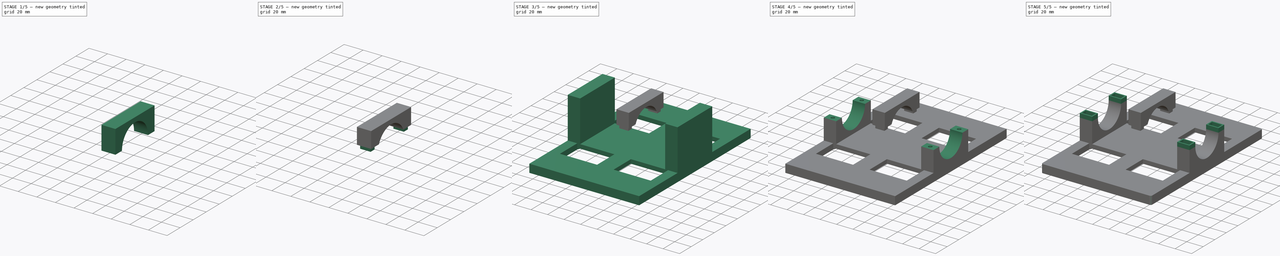
[diagram: build sequence overview — one tinted view per stage of 5, left to right]
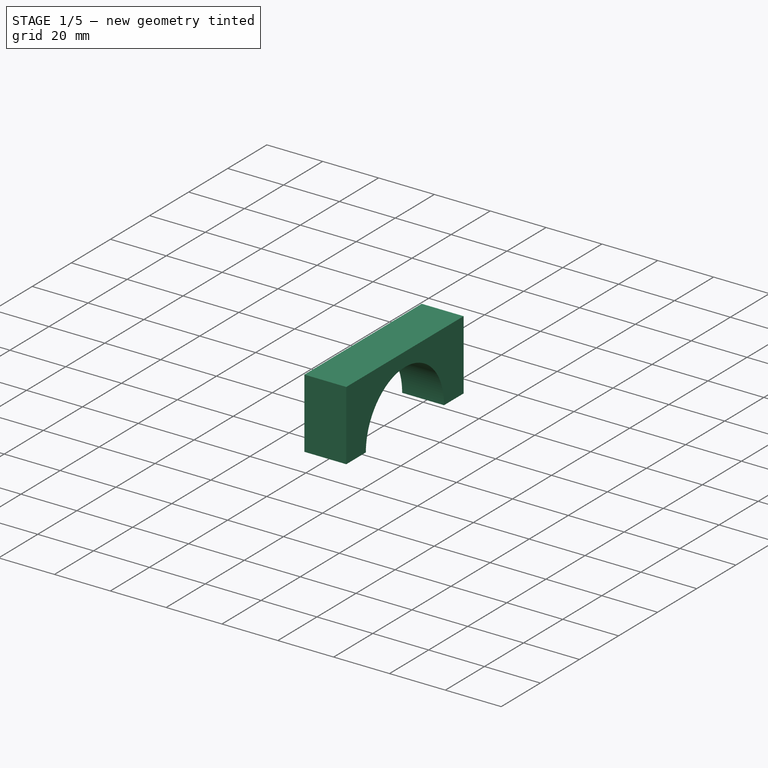
[diagram: stage 1 of 5 — iso view after this stage's code; geometry added in this stage tinted green]
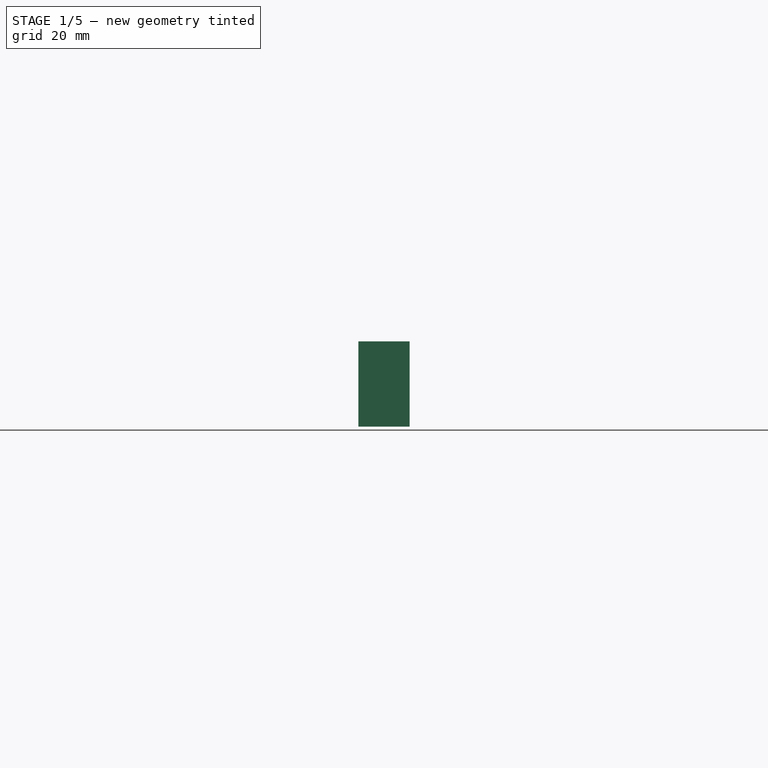
[diagram: stage 1 of 5 — front view after this stage's code; geometry added in this stage tinted green]
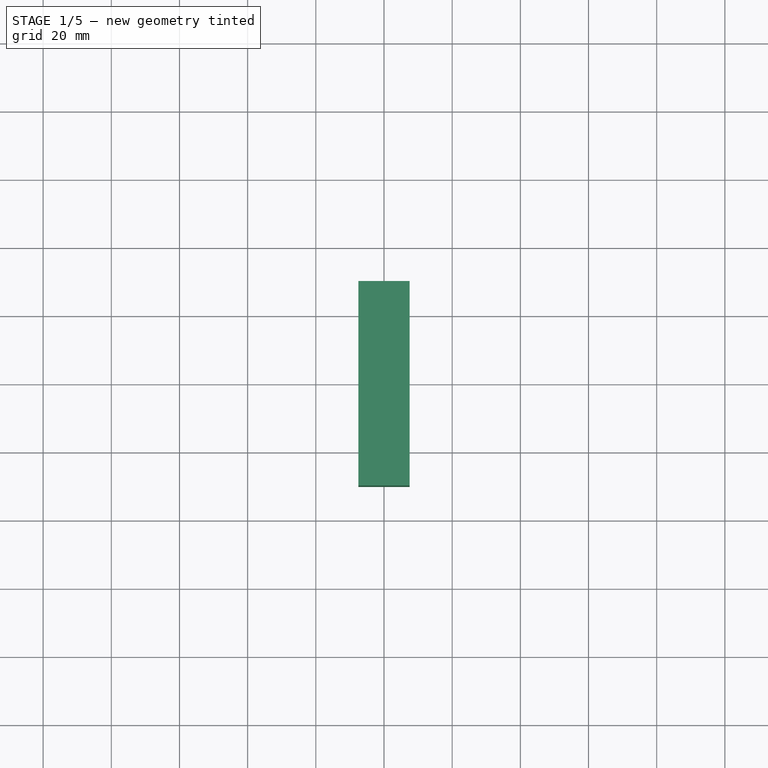
[diagram: stage 1 of 5 — top view after this stage's code; geometry added in this stage tinted green]
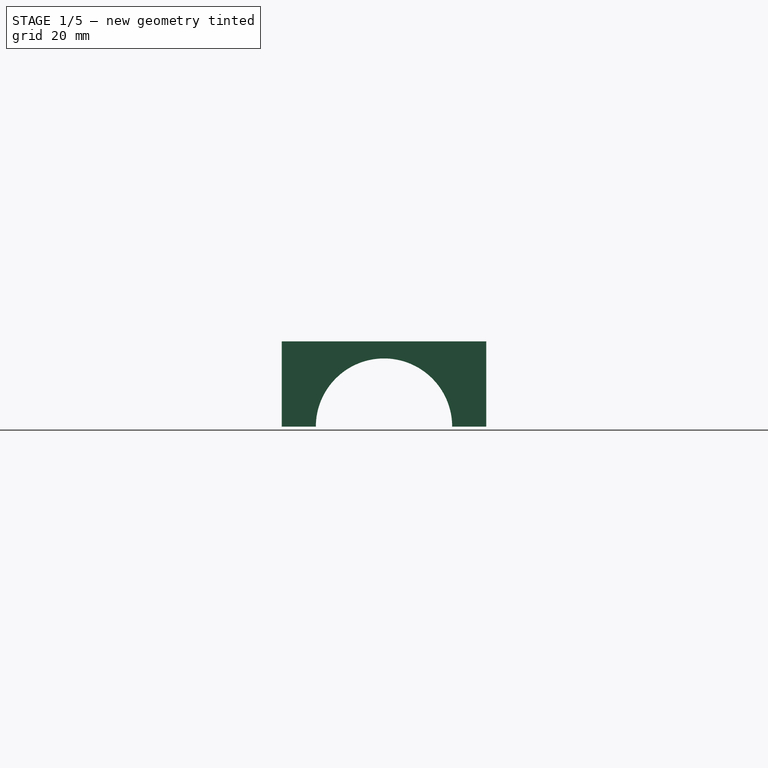
[diagram: stage 1 of 5 — right view after this stage's code; geometry added in this stage tinted green]
FCSTD DOCUMENT  (FreeCAD 0.20R29603 (Git))
Label: audio_interface_stand
License: All rights reserved
LicenseURL: http://en.wikipedia.org/wiki/All_rights_reserved
objects: Sketcher::SketchObject×15, PartDesign::Pocket×11, PartDesign::Pad×4, PartDesign::Body×2, Spreadsheet::Sheet×1, PartDesign::Fillet×1, App::Part×1
note: 49 computed .brp shape members not serialized (recipe doc carries the construction recipe); baked Part::Feature solids carry a one-line shape summary decoded from their .brp

FEATURE [PartDesign::Body] Body
  Group = -> [Sketch,Pad,Sketch001,Pad001,Sketch002,Pocket,Sketch003,Pocket001,Sketch004,Pocket002,Sketch005,Pocket003,Sketch006,Pocket004,Sketch007,Pocket005,Sketch008,Pad002,Fillet]
  Origin = -> Origin001
  Tip = -> Fillet
FEATURE [Sketcher::SketchObject] Sketch009
  FullyConstrained = true
  MapMode = 5
  Support = -> [XY_Plane002]
  expr: Constraints[8] = Spreadsheet.fixY
  expr: Constraints[9] = Spreadsheet.fixX
  sketch-geometry (4):
    g0: LineSegment StartX=-7.5 StartY=-30 StartZ=0 EndX=7.5 EndY=-30 EndZ=0
    g1: LineSegment StartX=7.5 StartY=-30 StartZ=0 EndX=7.5 EndY=30 EndZ=0
    g2: LineSegment StartX=7.5 StartY=30 StartZ=0 EndX=-7.5 EndY=30 EndZ=0
    g3: LineSegment StartX=-7.5 StartY=30 StartZ=0 EndX=-7.5 EndY=-30 EndZ=0
  constraints (11):
    c: Coincident(g0,g1)
    c: Coincident(g1,g2)
    c: Coincident(g2,g3)
    c: Coincident(g3,g0)
    c: Horizontal(g0)
    c: Horizontal(g2)
    c: Vertical(g1)
    c: Vertical(g3)
    c: DistanceY(g3,g3) = 60
    c: DistanceX(g2,g2) = 15
    c: Symmetric(g0,g2,g-1)
FEATURE [PartDesign::Pad] Pad003
  Direction = (0,0,1)
  Length = 60
  Length2 = 10
  Profile = -> Sketch009
  ReferenceAxis = -> Sketch009 [N_Axis]
  Type = 0
  expr: Length = Spreadsheet.fix_pad
FEATURE [Sketcher::SketchObject] Sketch010
  FullyConstrained = true
  MapMode = 5
  Placement = pos=(0,0,0) rot=(0.57735,0.57735,0.57735;2.0944rad)
  Support = -> [YZ_Plane002]
  expr: Constraints[1] = Spreadsheet.hole_fix
  expr: Constraints[2] = Spreadsheet.hole_height
  sketch-geometry (1):
    g0: Circle CenterX=0 CenterY=35 CenterZ=0 NormalX=0 NormalY=0 NormalZ=1 AngleXU=0 Radius=20
  constraints (3):
    c: PointOnObject(g0,g-2)
    c: Diameter(g0) = 40
    c: DistanceY(g-1,g0) = 35
FEATURE [PartDesign::Pocket] Pocket006
  BaseFeature = -> Pad003
  Direction = (-1,2e-16,-3e-16)
  Length = 5
  Length2 = 5
  Midplane = true
  Profile = -> Sketch010
  ReferenceAxis = -> Sketch010 [N_Axis]
  Type = 1
FEATURE [Sketcher::SketchObject] Sketch011
  FullyConstrained = true
  MapMode = 5
  Placement = pos=(0,0,0) rot=(0.57735,0.57735,0.57735;2.0944rad)
  Support = -> [YZ_Plane002]
  expr: Constraints[8] = Spreadsheet.hole_height
  sketch-geometry (4):
    g0: LineSegment StartX=-30 StartY=35 StartZ=0 EndX=30 EndY=35 EndZ=0
    g1: LineSegment StartX=30 StartY=35 StartZ=0 EndX=30 EndY=-5 EndZ=0
    g2: LineSegment StartX=30 StartY=-5 StartZ=0 EndX=-30 EndY=-5 EndZ=0
    g3: LineSegment StartX=-30 StartY=-5 StartZ=0 EndX=-30 EndY=35 EndZ=0
  constraints (12):
    c: Coincident(g0,g1)
    c: Coincident(g1,g2)
    c: Coincident(g2,g3)
    c: Coincident(g3,g0)
    c: Horizontal(g0)
    c: Horizontal(g2)
    c: Vertical(g1)
    c: Vertical(g3)
    c: DistanceY(g-1,g0) = 35
    c: DistanceX(g0,g0) = 60
    c: DistanceX(g0,g-1) = 30
    c: DistanceY(g2,g0) = 40
FEATURE [PartDesign::Pocket] Pocket007
  BaseFeature = -> Pocket006
  Direction = (-1,2e-16,-3e-16)
  Length = 5
  Length2 = 5
  Midplane = true
  Profile = -> Sketch011
  ReferenceAxis = -> Sketch011 [N_Axis]
  Type = 1
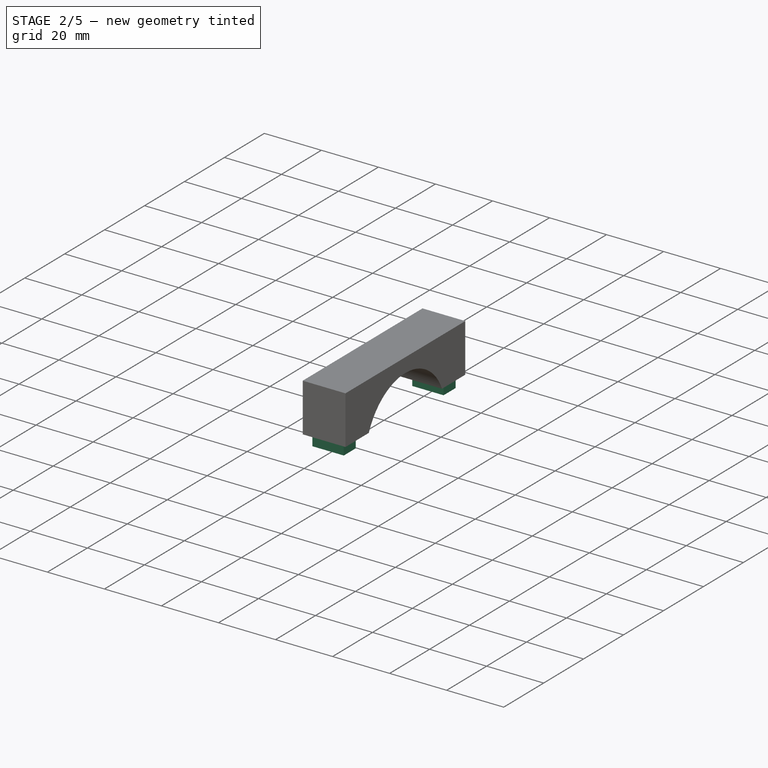
[diagram: stage 2 of 5 — iso view after this stage's code; geometry added in this stage tinted green]
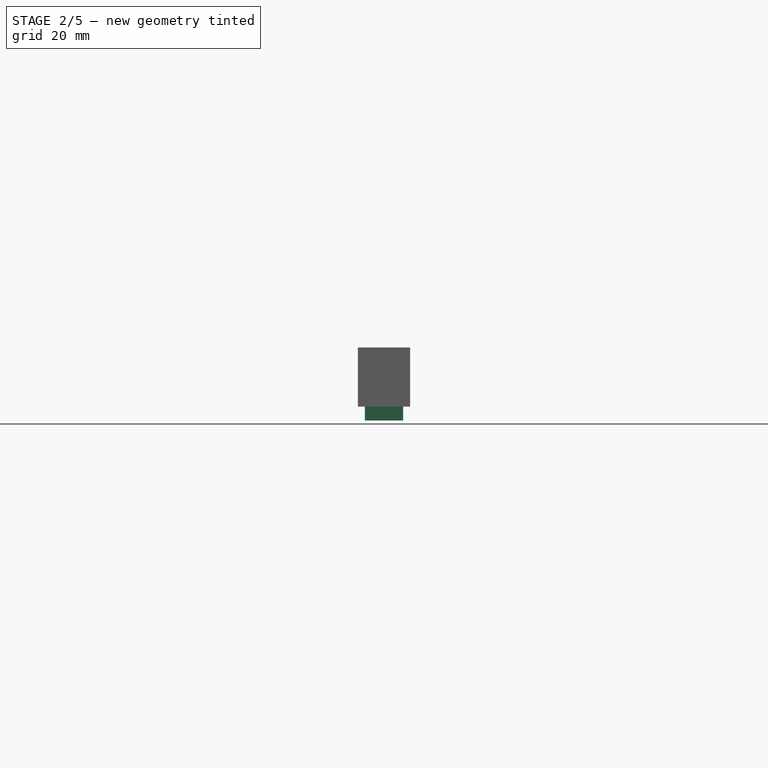
[diagram: stage 2 of 5 — front view after this stage's code; geometry added in this stage tinted green]
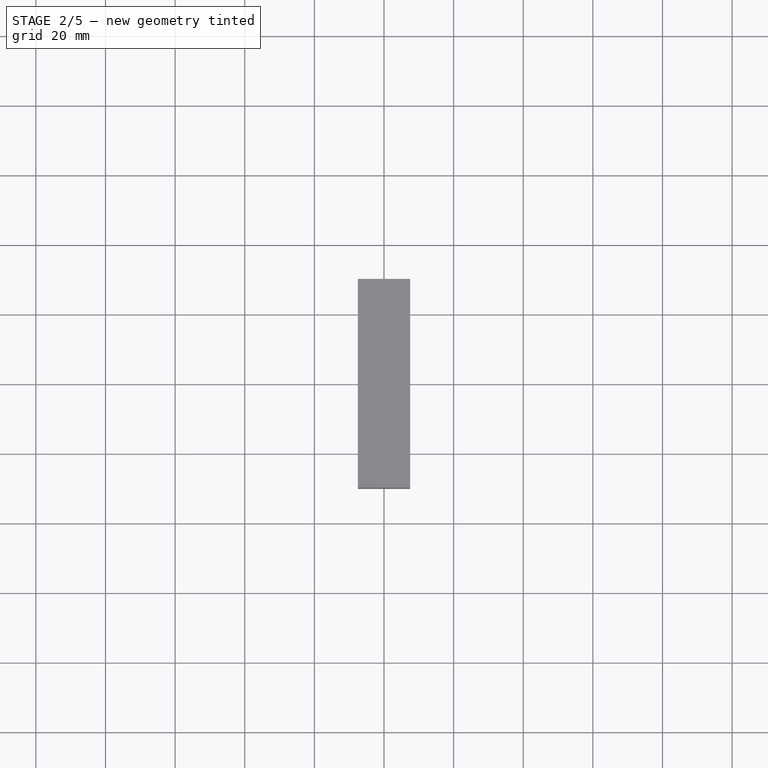
[diagram: stage 2 of 5 — top view after this stage's code; geometry added in this stage tinted green]
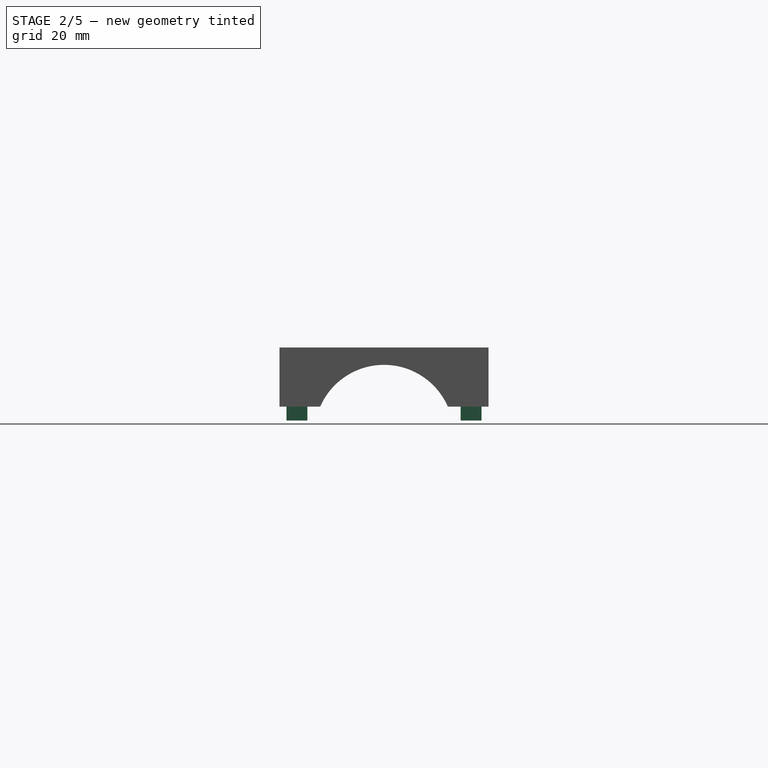
[diagram: stage 2 of 5 — right view after this stage's code; geometry added in this stage tinted green]
FEATURE [Sketcher::SketchObject] Sketch012
  FullyConstrained = true
  MapMode = 5
  Support = -> [XY_Plane002]
  expr: Constraints[0] = Spreadsheet.hole_pox_y
  expr: Constraints[1] = Spreadsheet.hole_metric
  expr: Constraints[5] = Spreadsheet.hole_pox_y
  sketch-geometry (2):
    g0: Circle CenterX=0 CenterY=25 CenterZ=0 NormalX=0 NormalY=0 NormalZ=1 AngleXU=0 Radius=2.25
    g1: Circle CenterX=0 CenterY=-25 CenterZ=0 NormalX=0 NormalY=0 NormalZ=1 AngleXU=0 Radius=2.25
  constraints (6):
    c: DistanceY(g0) = 25
    c: Diameter(g0) = 4.5
    c: PointOnObject(g0,g-2)
    c: Equal(g0,g1)
    c: PointOnObject(g1,g-2)
    c: DistanceY(g1,g-1) = 25
FEATURE [PartDesign::Pocket] Pocket008
  BaseFeature = -> Pocket007
  Direction = (0,0,-1)
  Length = 55
  Length2 = 5
  Profile = -> Sketch012
  ReferenceAxis = -> Sketch012 [N_Axis]
  Reversed = true
  Type = 0
FEATURE [Sketcher::SketchObject] Sketch013
  ExternalGeometry = -> [Pocket008]
  FullyConstrained = true
  MapMode = 5
  Support = -> [XY_Plane002]
  sketch-geometry (16):
    g0: LineSegment StartX=-7.5 StartY=30 StartZ=0 EndX=7.5 EndY=30 EndZ=0
    g1: LineSegment StartX=7.5 StartY=30 StartZ=0 EndX=7.5 EndY=18 EndZ=0
    g2: LineSegment StartX=7.5 StartY=18 StartZ=0 EndX=-7.5 EndY=18 EndZ=0
    g3: LineSegment StartX=-7.5 StartY=18 StartZ=0 EndX=-7.5 EndY=30 EndZ=0
    g4: LineSegment StartX=-7.5 StartY=-30 StartZ=0 EndX=7.5 EndY=-30 EndZ=0
    g5: LineSegment StartX=7.5 StartY=-30 StartZ=0 EndX=7.5 EndY=-18 EndZ=0
    g6: LineSegment StartX=7.5 StartY=-18 StartZ=0 EndX=-7.5 EndY=-18 EndZ=0
    g7: LineSegment StartX=-7.5 StartY=-18 StartZ=0 EndX=-7.5 EndY=-30 EndZ=0
    g8: LineSegment StartX=-5.5 StartY=28 StartZ=0 EndX=5.5 EndY=28 EndZ=0
    g9: LineSegment StartX=5.5 StartY=28 StartZ=0 EndX=5.5 EndY=22 EndZ=0
    g10: LineSegment StartX=5.5 StartY=22 StartZ=0 EndX=-5.5 EndY=22 EndZ=0
    g11: LineSegment StartX=-5.5 StartY=22 StartZ=0 EndX=-5.5 EndY=28 EndZ=0
    g12: LineSegment StartX=-5.5 StartY=-22 StartZ=0 EndX=5.5 EndY=-22 EndZ=0
    g13: LineSegment StartX=5.5 StartY=-22 StartZ=0 EndX=5.5 EndY=-28 EndZ=0
    g14: LineSegment StartX=5.5 StartY=-28 StartZ=0 EndX=-5.5 EndY=-28 EndZ=0
    g15: LineSegment StartX=-5.5 StartY=-28 StartZ=0 EndX=-5.5 EndY=-22 EndZ=0
  constraints (46):
    c: Coincident(g0,g1)
    c: Coincident(g1,g2)
    c: Coincident(g2,g3)
    c: Coincident(g3,g0)
    c: Horizontal(g0)
    c: Horizontal(g2)
    c: Vertical(g1)
    c: Vertical(g3)
    c: Coincident(g4,g5)
    c: Coincident(g5,g6)
    c: Coincident(g6,g7)
    c: Coincident(g7,g4)
    c: Horizontal(g4)
    c: Horizontal(g6)
    c: Vertical(g5)
    c: Vertical(g7)
    c: Coincident(g0,g-4)
    c: DistanceX(g0,g-4) = 0
    c: DistanceY(g2,g-5) = 2
    c: Coincident(g8,g9)
    c: Coincident(g9,g10)
    c: Coincident(g10,g11)
    c: Coincident(g11,g8)
    c: Horizontal(g8)
    c: Horizontal(g10)
    c: Vertical(g9)
    c: Vertical(g11)
    c: DistanceX(g0,g8) = 2
    c: DistanceX(g8,g0) = 2
    c: DistanceY(g8,g0) = 2
    c: DistanceY(g-5,g10) = 2
    c: Coincident(g4,g-3)
    c: DistanceX(g4,g-3) = 0
    c: DistanceY(g-6,g6) = 2
    c: Coincident(g12,g13)
    c: Coincident(g13,g14)
    c: Coincident(g14,g15)
    c: Coincident(g15,g12)
    c: Horizontal(g12)
    c: Horizontal(g14)
    c: Vertical(g13)
    c: Vertical(g15)
    c: DistanceY(g4,g13) = 2
    c: DistanceY(g12,g-6) = 2
    c: DistanceX(g-6,g12) = 2
    c: DistanceX(g12,g-6) = 2
FEATURE [PartDesign::Pocket] Pocket009
  BaseFeature = -> Pocket008
  Direction = (0,0,-1)
  Length = 43
  Length2 = 5
  Profile = -> Sketch013
  ReferenceAxis = -> Sketch013 [N_Axis]
  Reversed = true
  Type = 0
FEATURE [Sketcher::SketchObject] Sketch014
  FullyConstrained = true
  MapMode = 5
  Placement = pos=(0,0,0) rot=(0.57735,0.57735,0.57735;2.0944rad)
  Support = -> [YZ_Plane002]
  sketch-geometry (4):
    g0: LineSegment StartX=-40 StartY=-1e-16 StartZ=0 EndX=40 EndY=-1e-16 EndZ=0
    g1: LineSegment StartX=40 StartY=-1e-16 StartZ=0 EndX=40 EndY=39 EndZ=0
    g2: LineSegment StartX=40 StartY=39 StartZ=0 EndX=-40 EndY=39 EndZ=0
    g3: LineSegment StartX=-40 StartY=39 StartZ=0 EndX=-40 EndY=0 EndZ=0
  constraints (12):
    c: Coincident(g0,g1)
    c: Coincident(g1,g2)
    c: Coincident(g2,g3)
    c: Coincident(g3,g0)
    c: Horizontal(g0)
    c: Horizontal(g2)
    c: Vertical(g1)
    c: Vertical(g3)
    c: PointOnObject(g0,g-1)
    c: Distance(g3) = 39
    c: Distance(g0) = 80
    c: DistanceX(g-1,g0) = 40
FEATURE [PartDesign::Pocket] Pocket010
  BaseFeature = -> Pocket009
  Direction = (-1,2e-16,-3e-16)
  Length = 5
  Length2 = 5
  Midplane = true
  Profile = -> Sketch014
  ReferenceAxis = -> Sketch014 [N_Axis]
  Type = 1
FEATURE [PartDesign::Body] Body001  label="hole_fixer"
  Group = -> [Sketch009,Pad003,Sketch010,Pocket006,Sketch011,Pocket007,Sketch012,Pocket008,Sketch013,Pocket009,Sketch014,Pocket010]
  Origin = -> Origin002
  Placement = pos=(56,0,0) rot=(0,0,1;0rad)
  Tip = -> Pocket010
FEATURE [App::Part] Part  label="TASCAM audio interface stand"
  Group = -> [Body,Body001]
  Origin = -> Origin
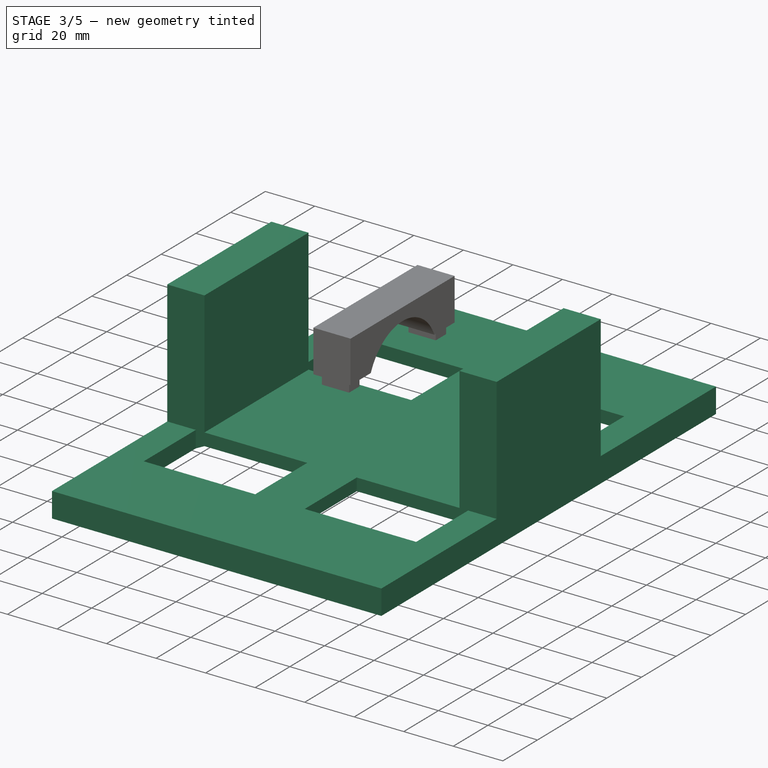
[diagram: stage 3 of 5 — iso view after this stage's code; geometry added in this stage tinted green]
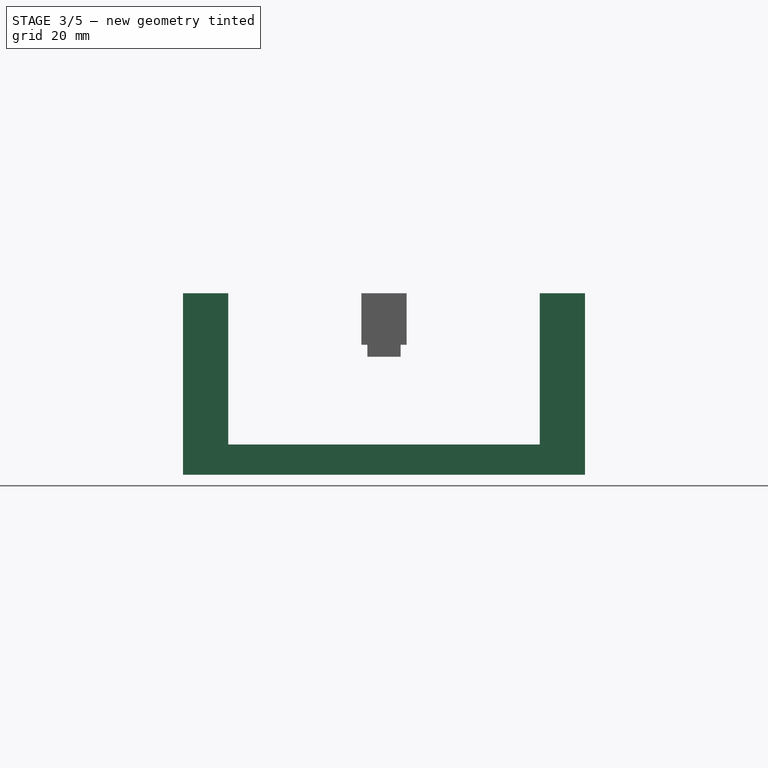
[diagram: stage 3 of 5 — front view after this stage's code; geometry added in this stage tinted green]
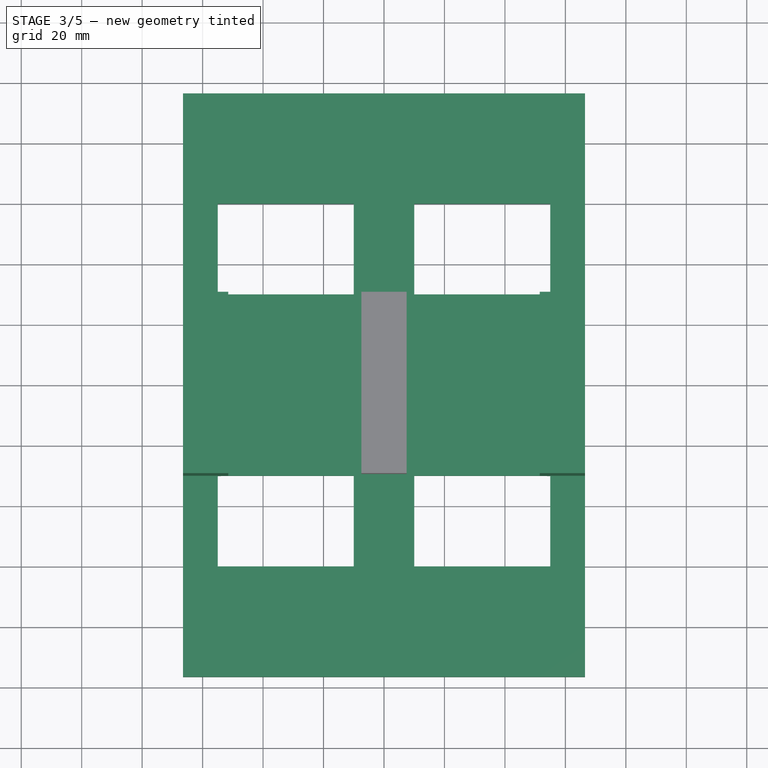
[diagram: stage 3 of 5 — top view after this stage's code; geometry added in this stage tinted green]
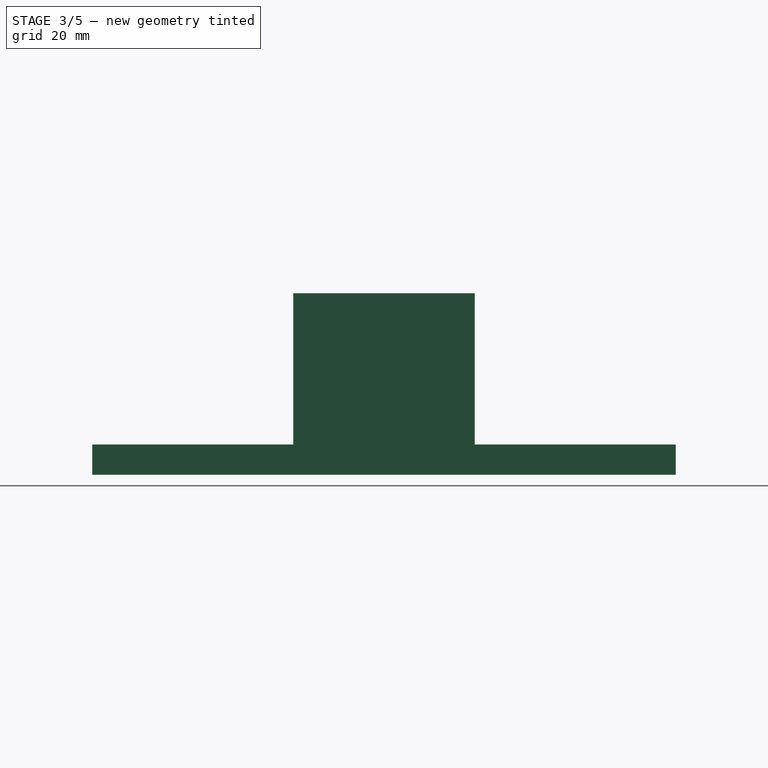
[diagram: stage 3 of 5 — right view after this stage's code; geometry added in this stage tinted green]
FEATURE [Sketcher::SketchObject] Sketch  label="base"
  FullyConstrained = true
  MapMode = 5
  Support = -> [XY_Plane001]
  expr: Constraints[10] = Spreadsheet.squareX
  expr: Constraints[9] = Spreadsheet.squareY
  sketch-geometry (4):
    g0: LineSegment StartX=-66.5 StartY=96.5 StartZ=0 EndX=66.5 EndY=96.5 EndZ=0
    g1: LineSegment StartX=66.5 StartY=96.5 StartZ=0 EndX=66.5 EndY=-96.5 EndZ=0
    g2: LineSegment StartX=66.5 StartY=-96.5 StartZ=0 EndX=-66.5 EndY=-96.5 EndZ=0
    g3: LineSegment StartX=-66.5 StartY=-96.5 StartZ=0 EndX=-66.5 EndY=96.5 EndZ=0
  constraints (11):
    c: Coincident(g0,g1)
    c: Coincident(g1,g2)
    c: Coincident(g2,g3)
    c: Coincident(g3,g0)
    c: Horizontal(g0)
    c: Horizontal(g2)
    c: Vertical(g1)
    c: Vertical(g3)
    c: Symmetric(g0,g1,g-1)
    c: Distance(g3) = 193
    c: Distance(g2) = 133
FEATURE [PartDesign::Pad] Pad
  Direction = (0,0,1)
  Length = 10
  Length2 = 10
  Profile = -> Sketch
  ReferenceAxis = -> Sketch [N_Axis]
  Type = 0
  expr: Length = Spreadsheet.square_z
FEATURE [Sketcher::SketchObject] Sketch001  label="fixers"
  ExternalGeometry = -> [Pad]
  FullyConstrained = true
  MapMode = 5
  Support = -> [XY_Plane001]
  expr: Constraints[16] = Spreadsheet.fixX
  expr: Constraints[17] = Spreadsheet.fixY
  expr: Constraints[18] = Spreadsheet.fixY_pos
  expr: Constraints[21] = Spreadsheet.fixY_pos
  expr: Constraints[22] = Spreadsheet.fixX_pos
  expr: Constraints[23] = Spreadsheet.fixX_pos
  sketch-geometry (8):
    g0: LineSegment StartX=51.5 StartY=30 StartZ=0 EndX=66.5 EndY=30 EndZ=0
    g1: LineSegment StartX=66.5 StartY=30 StartZ=0 EndX=66.5 EndY=-30 EndZ=0
    g2: LineSegment StartX=66.5 StartY=-30 StartZ=0 EndX=51.5 EndY=-30 EndZ=0
    g3: LineSegment StartX=51.5 StartY=-30 StartZ=0 EndX=51.5 EndY=30 EndZ=0
    g4: LineSegment StartX=-66.5 StartY=30 StartZ=0 EndX=-51.5 EndY=30 EndZ=0
    g5: LineSegment StartX=-51.5 StartY=30 StartZ=0 EndX=-51.5 EndY=-30 EndZ=0
    g6: LineSegment StartX=-51.5 StartY=-30 StartZ=0 EndX=-66.5 EndY=-30 EndZ=0
    g7: LineSegment StartX=-66.5 StartY=-30 StartZ=0 EndX=-66.5 EndY=30 EndZ=0
  constraints (24):
    c: Coincident(g0,g1)
    c: Coincident(g1,g2)
    c: Coincident(g2,g3)
    c: Coincident(g3,g0)
    c: Horizontal(g0)
    c: Horizontal(g2)
    c: Vertical(g1)
    c: Vertical(g3)
    c: Coincident(g4,g5)
    c: Coincident(g5,g6)
    c: Coincident(g6,g7)
    c: Coincident(g7,g4)
    c: Horizontal(g4)
    c: Horizontal(g6)
    c: Vertical(g5)
    c: Vertical(g7)
    c: Distance(g4) = 15
    c: Distance(g7) = 60
    c: DistanceY(g-1,g4) = 30
    c: Equal(g4,g0)
    c: Equal(g3,g5)
    c: DistanceY(g-1,g0) = 30
    c: DistanceX(g4,g-1) = 66.5
    c: DistanceX(g-1,g0) = 66.5
FEATURE [Spreadsheet::Sheet] Spreadsheet
  cells = A2=squareX; B2(squareX)==B16 + 2 * B18; C2=0; A3=squareY; B3(squareY)==B17 + 2 * B18; C3=0; A4=fixX; B4(fixX)=15; C4=input; A5=fixY; B5(fixY)==B11 + 2 * B12 + B20; A6=metric; B6(metric)=4; C6=input; A7=hole_metric; B7(hole_metric)==B6 + B10; A8=boxe_screw; B8(boxe_screw)==B6 + 4; A9=boxe_bolt; B9(boxe_bolt)==B6 + 4; A10=screw_tolerance; B10(screw_tolerance)=0.5; C10=input; A11=hole_fix; B11(hole_fix)=40; C11=input; A12=hole_spacer; B12(hole_spacer)=5; C12=input; A13=fixX_pos; B13(fixX_pos)==B2 / 2; A14=fixY_pos; B14(fixY_pos)==B5 / 2; A15=fix_pad; B15(fix_pad)==B11 + 2 * B12 + B20; A16=case_hole_x; B16(case_hole_x)=123; C16=input; A17=case_hole_y; B17(case_hole_y)=183; C17=input; A18=case_spacer; B18(case_spacer)=5; C18=input; A19=case_hole_z; B19(case_hole_z)=5; C19=input; A20=square_z; B20(square_z)==B19 + 5; A21=delta_x_case; B21(delta_x_case)=10; A22=case_hole_x_pos; B22(case_hole_x_pos)==B16 / 2; A23=case_hole_x_2; B23(case_hole_x_2)==B16 - 2 * B21; A24=case_hole_y_2; B24(case_hole_y_2)=; A25=case_hole_x_2_pos; B25(case_hole_x_2_pos)==B23 / 2; A26=hole_height; B26(hole_height)==B21 + B12 + B11 / 2; A27=hole_pox_y; B27(hole_pox_y)==B11 / 2 + B12; A28=hole_pox_x; B28(hole_pox_x)==B2 / 2 - B4 / 2
FEATURE [PartDesign::Pad] Pad001  label="fixers001"
  BaseFeature = -> Pad
  Direction = (0,0,1)
  Length = 60
  Length2 = 10
  Profile = -> Sketch001
  ReferenceAxis = -> Sketch001 [N_Axis]
  Type = 0
  expr: Length = Spreadsheet.fix_pad
FEATURE [Sketcher::SketchObject] Sketch002  label="case_hole"
  FullyConstrained = true
  MapMode = 5
  Placement = pos=(0,0,0) rot=(1,0,0;1.5708rad)
  Support = -> [XZ_Plane001]
  expr: Constraints[10] = Spreadsheet.case_hole_x_pos
  expr: Constraints[11] = Spreadsheet.case_hole_z
  expr: Constraints[12] = Spreadsheet.case_hole_x_2
  expr: Constraints[13] = Spreadsheet.case_hole_x_2_pos
  expr: Constraints[9] = Spreadsheet.case_hole_x
  sketch-geometry (5):
    g0: LineSegment StartX=-51.5 StartY=5 StartZ=0 EndX=51.5 EndY=5 EndZ=0
    g1: LineSegment StartX=51.5 StartY=5 StartZ=0 EndX=61.5 EndY=0 EndZ=0
    g2: LineSegment StartX=61.5 StartY=0 StartZ=0 EndX=0 EndY=0 EndZ=0
    g3: LineSegment StartX=0 StartY=0 StartZ=0 EndX=-61.5 EndY=0 EndZ=0
    g4: LineSegment StartX=-61.5 StartY=0 StartZ=0 EndX=-51.5 EndY=5 EndZ=0
  constraints (14):
    c: Horizontal(g0)
    c: Coincident(g0,g1)
    c: Coincident(g1,g2)
    c: Coincident(g2,g3)
    c: Coincident(g3,g4)
    c: Coincident(g4,g0)
    c: PointOnObject(g3,g-1)
    c: PointOnObject(g1,g-1)
    c: Coincident(g-1,g2)
    c: DistanceX(g3,g1) = 123
    c: DistanceX(g3,g2) = 61.5
    c: DistanceY(g2,g0) = 5
    c: Distance(g0) = 103
    c: DistanceX(g0,g2) = 51.5
FEATURE [PartDesign::Pocket] Pocket  label="case"
  BaseFeature = -> Pad001
  Direction = (0,1,2e-16)
  Length = 183
  Length2 = 5
  Midplane = true
  Profile = -> Sketch002
  ReferenceAxis = -> Sketch002 [N_Axis]
  Type = 0
  expr: Length = Spreadsheet.case_hole_y
FEATURE [Sketcher::SketchObject] Sketch003  label="square_holes"
  FullyConstrained = true
  MapMode = 5
  Support = -> [XY_Plane001]
  sketch-geometry (16):
    g0: LineSegment StartX=-55 StartY=60 StartZ=0 EndX=-10 EndY=60 EndZ=0
    g1: LineSegment StartX=-10 StartY=60 StartZ=0 EndX=-10 EndY=30 EndZ=0
    g2: LineSegment StartX=-10 StartY=30 StartZ=0 EndX=-55 EndY=30 EndZ=0
    g3: LineSegment StartX=-55 StartY=30 StartZ=0 EndX=-55 EndY=60 EndZ=0
    g4: LineSegment StartX=10 StartY=60 StartZ=0 EndX=55 EndY=60 EndZ=0
    g5: LineSegment StartX=55 StartY=60 StartZ=0 EndX=55 EndY=30 EndZ=0
    g6: LineSegment StartX=55 StartY=30 StartZ=0 EndX=10 EndY=30 EndZ=0
    g7: LineSegment StartX=10 StartY=30 StartZ=0 EndX=10 EndY=60 EndZ=0
    g8: LineSegment StartX=55 StartY=-30 StartZ=0 EndX=10 EndY=-30 EndZ=0
    g9: LineSegment StartX=10 StartY=-30 StartZ=0 EndX=10 EndY=-60 EndZ=0
    g10: LineSegment StartX=10 StartY=-60 StartZ=0 EndX=55 EndY=-60 EndZ=0
    g11: LineSegment StartX=55 StartY=-60 StartZ=0 EndX=55 EndY=-30 EndZ=0
    g12: LineSegment StartX=-55 StartY=-30 StartZ=0 EndX=-10 EndY=-30 EndZ=0
    g13: LineSegment StartX=-10 StartY=-30 StartZ=0 EndX=-10 EndY=-60 EndZ=0
    g14: LineSegment StartX=-10 StartY=-60 StartZ=0 EndX=-55 EndY=-60 EndZ=0
    g15: LineSegment StartX=-55 StartY=-60 StartZ=0 EndX=-55 EndY=-30 EndZ=0
  constraints (48):
    c: Coincident(g0,g1)
    c: Coincident(g1,g2)
    c: Coincident(g2,g3)
    c: Coincident(g3,g0)
    c: Horizontal(g0)
    c: Horizontal(g2)
    c: Vertical(g1)
    c: Vertical(g3)
    c: DistanceY(g-1,g1) = 30
    c: DistanceX(g1,g-1) = 10
    c: DistanceX(g2,g-1) = 55
    c: DistanceY(g-1,g0) = 60
    c: Coincident(g4,g5)
    c: Coincident(g5,g6)
    c: Coincident(g6,g7)
    c: Coincident(g7,g4)
    c: Horizontal(g4)
    c: Horizontal(g6)
    c: Vertical(g5)
    c: Vertical(g7)
    c: Coincident(g8,g9)
    c: Coincident(g9,g10)
    c: Coincident(g10,g11)
    c: Coincident(g11,g8)
    c: Horizontal(g8)
    c: Horizontal(g10)
    c: Vertical(g9)
    c: Vertical(g11)
    c: Coincident(g12,g13)
    c: Coincident(g13,g14)
    c: Coincident(g14,g15)
    c: Coincident(g15,g12)
    c: Horizontal(g12)
    c: Horizontal(g14)
    c: Vertical(g13)
    c: Vertical(g15)
    c: DistanceY(g-1,g4) = 60
    c: DistanceY(g10,g-1) = 60
    c: DistanceY(g13,g-1) = 60
    c: DistanceY(g-1,g6) = 30
    c: DistanceY(g8,g-1) = 30
    c: DistanceY(g12,g-1) = 30
    c: DistanceX(g-1,g6) = 10
    c: DistanceX(g-1,g5) = 55
    c: DistanceX(g-1,g8) = 10
    c: DistanceX(g-1,g8) = 55
    c: DistanceX(g12,g-1) = 10
    c: DistanceX(g12,g-1) = 55
FEATURE [PartDesign::Pocket] Pocket001  label="square_holes001"
  BaseFeature = -> Pocket
  Direction = (0,0,-1)
  Length = 5
  Length2 = 5
  Profile = -> Sketch003
  ReferenceAxis = -> Sketch003 [N_Axis]
  Reversed = true
  Type = 1
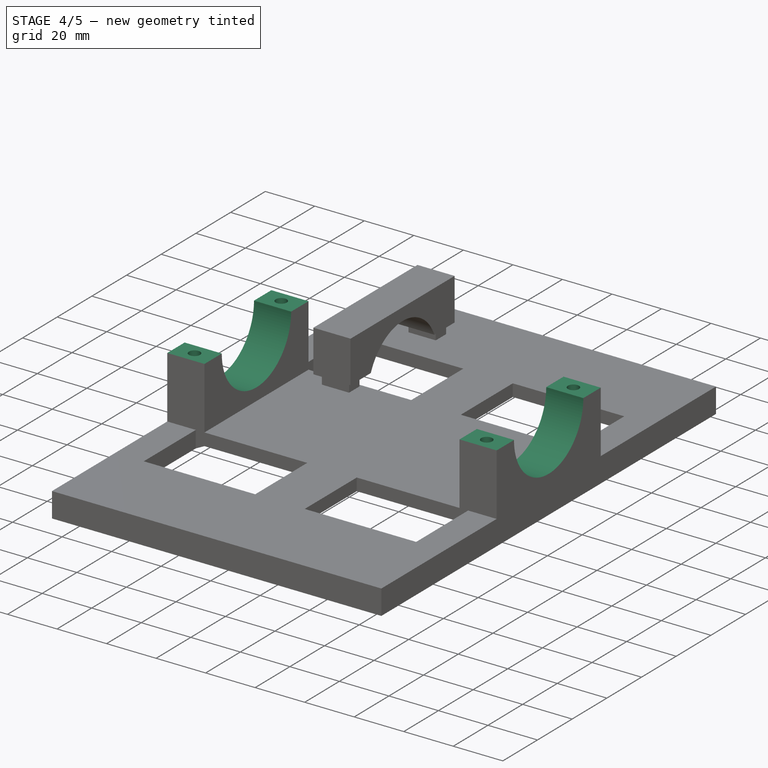
[diagram: stage 4 of 5 — iso view after this stage's code; geometry added in this stage tinted green]
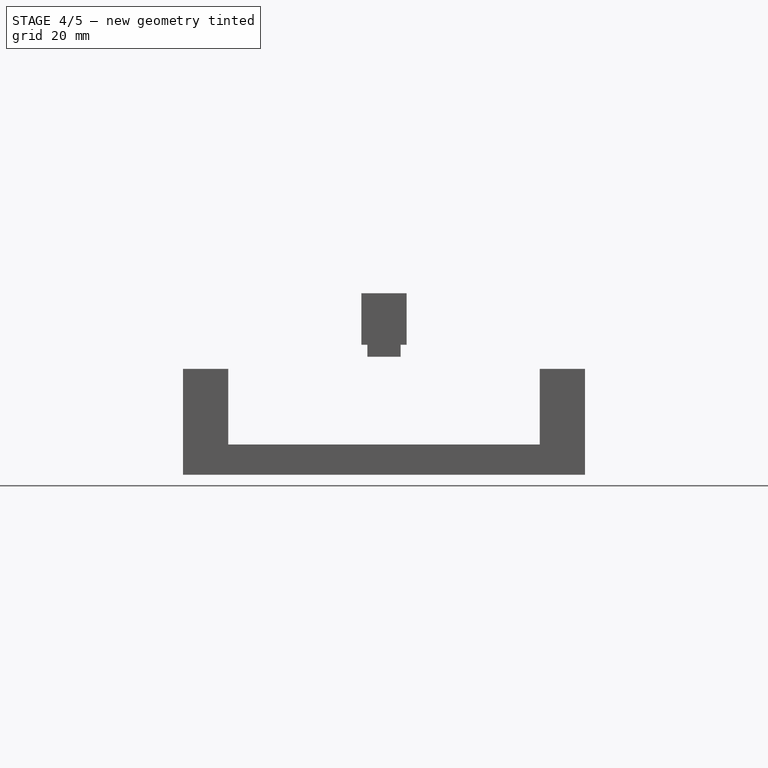
[diagram: stage 4 of 5 — front view after this stage's code; geometry added in this stage tinted green]
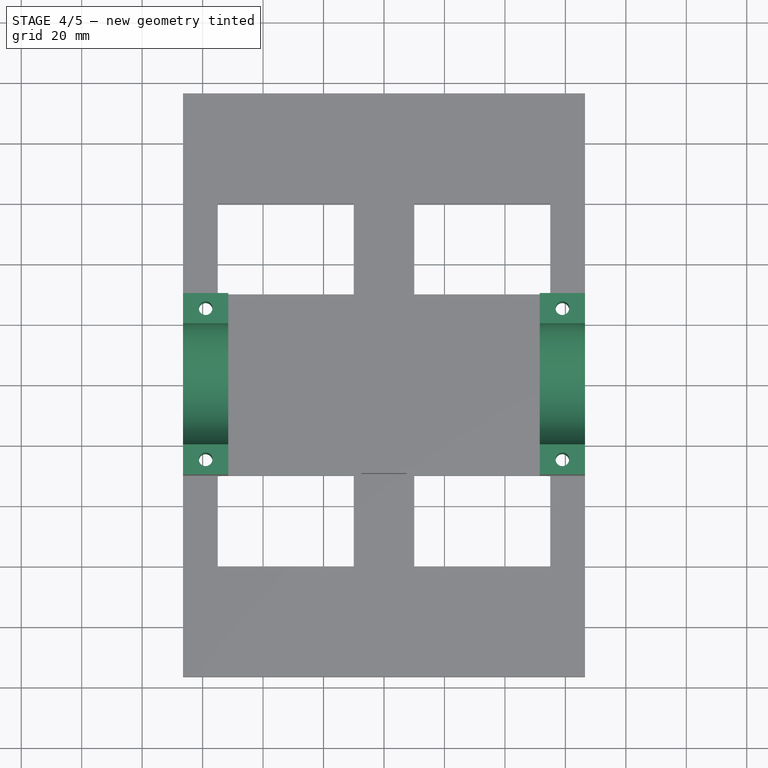
[diagram: stage 4 of 5 — top view after this stage's code; geometry added in this stage tinted green]
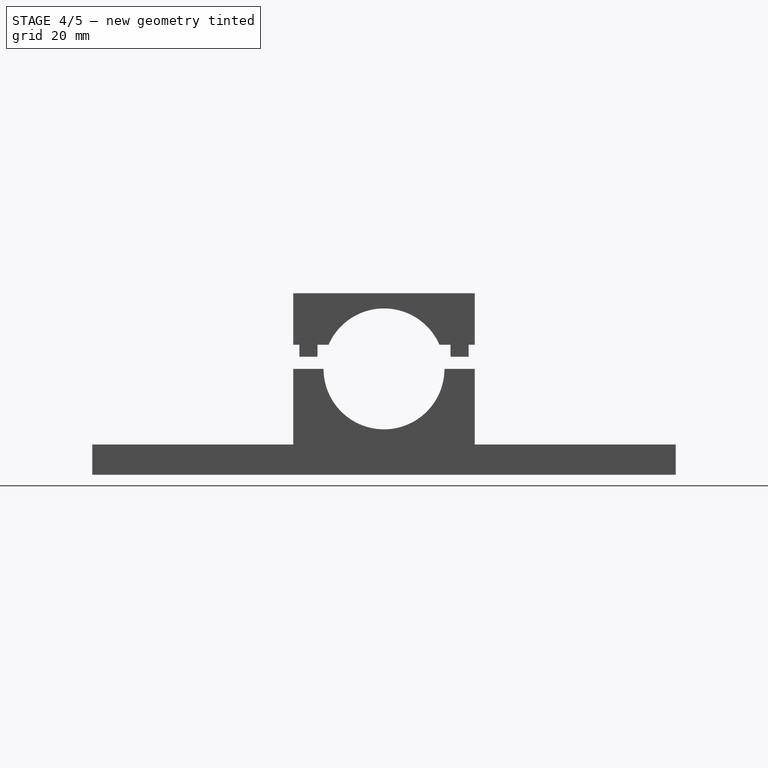
[diagram: stage 4 of 5 — right view after this stage's code; geometry added in this stage tinted green]
FEATURE [Sketcher::SketchObject] Sketch004  label="hole_fix"
  FullyConstrained = true
  MapMode = 5
  Placement = pos=(0,0,0) rot=(0.57735,0.57735,0.57735;2.0944rad)
  Support = -> [YZ_Plane001]
  expr: Constraints[1] = Spreadsheet.hole_fix
  expr: Constraints[2] = Spreadsheet.hole_height
  sketch-geometry (1):
    g0: Circle CenterX=0 CenterY=35 CenterZ=0 NormalX=0 NormalY=0 NormalZ=1 AngleXU=0 Radius=20
  constraints (3):
    c: PointOnObject(g0,g-2)
    c: Diameter(g0) = 40
    c: DistanceY(g-1,g0) = 35
FEATURE [PartDesign::Pocket] Pocket002  label="hole_fix001"
  BaseFeature = -> Pocket001
  Direction = (-1,2e-16,-3e-16)
  Length = 5
  Length2 = 5
  Midplane = true
  Profile = -> Sketch004
  ReferenceAxis = -> Sketch004 [N_Axis]
  Type = 1
FEATURE [Sketcher::SketchObject] Sketch005
  FullyConstrained = true
  MapMode = 5
  Placement = pos=(0,0,0) rot=(0.57735,0.57735,0.57735;2.0944rad)
  Support = -> [YZ_Plane001]
  expr: Constraints[10] = Spreadsheet.hole_height
  sketch-geometry (4):
    g0: LineSegment StartX=-30 StartY=95 StartZ=0 EndX=30 EndY=95 EndZ=0
    g1: LineSegment StartX=30 StartY=95 StartZ=0 EndX=30 EndY=35 EndZ=0
    g2: LineSegment StartX=30 StartY=35 StartZ=0 EndX=-30 EndY=35 EndZ=0
    g3: LineSegment StartX=-30 StartY=35 StartZ=0 EndX=-30 EndY=95 EndZ=0
  constraints (12):
    c: Coincident(g0,g1)
    c: Coincident(g1,g2)
    c: Coincident(g2,g3)
    c: Coincident(g3,g0)
    c: Horizontal(g0)
    c: Horizontal(g2)
    c: Vertical(g1)
    c: Vertical(g3)
    c: Distance(g1) = 60
    c: Distance(g0) = 60
    c: DistanceY(g-1,g2) = 35
    c: DistanceX(g2,g-1) = 30
FEATURE [PartDesign::Pocket] Pocket003  label="cut_hole_fix"
  BaseFeature = -> Pocket002
  Direction = (-1,2e-16,-3e-16)
  Length = 5
  Length2 = 5
  Midplane = true
  Profile = -> Sketch005
  ReferenceAxis = -> Sketch005 [N_Axis]
  Type = 1
FEATURE [Sketcher::SketchObject] Sketch006  label="holes_screw"
  FullyConstrained = true
  MapMode = 5
  Support = -> [XY_Plane001]
  expr: Constraints[0] = Spreadsheet.hole_metric
  expr: Constraints[10] = Spreadsheet.hole_pox_y
  expr: Constraints[11] = Spreadsheet.hole_pox_y
  expr: Constraints[1] = Spreadsheet.hole_pox_y
  expr: Constraints[2] = Spreadsheet.hole_pox_x
  expr: Constraints[3] = Spreadsheet.hole_pox_x
  expr: Constraints[4] = Spreadsheet.hole_pox_x
  expr: Constraints[5] = Spreadsheet.hole_pox_x
  expr: Constraints[9] = Spreadsheet.hole_pox_y
  sketch-geometry (4):
    g0: Circle CenterX=-59 CenterY=25 CenterZ=0 NormalX=0 NormalY=0 NormalZ=1 AngleXU=0 Radius=2.25
    g1: Circle CenterX=59 CenterY=25 CenterZ=0 NormalX=0 NormalY=0 NormalZ=1 AngleXU=0 Radius=2.25
    g2: Circle CenterX=59 CenterY=-25 CenterZ=0 NormalX=0 NormalY=0 NormalZ=1 AngleXU=0 Radius=2.25
    g3: Circle CenterX=-59 CenterY=-25 CenterZ=0 NormalX=0 NormalY=0 NormalZ=1 AngleXU=0 Radius=2.25
  constraints (12):
    c: Diameter(g0) = 4.5
    c: DistanceY(g-1,g0) = 25
    c: DistanceX(g0,g-1) = 59
    c: DistanceX(g-1,g1) = 59
    c: DistanceX(g-1,g2) = 59
    c: DistanceX(g3,g-1) = 59
    c: Equal(g0,g3)
    c: Equal(g0,g1)
    c: Equal(g0,g2)
    c: DistanceY(g-1,g1) = 25
    c: DistanceY(g2,g-1) = 25
    c: DistanceY(g3,g-1) = 25
FEATURE [PartDesign::Pocket] Pocket004  label="hole_screw"
  BaseFeature = -> Pocket003
  Direction = (0,0,-1)
  Length = 5
  Length2 = 5
  Midplane = true
  Profile = -> Sketch006
  ReferenceAxis = -> Sketch006 [N_Axis]
  Type = 1
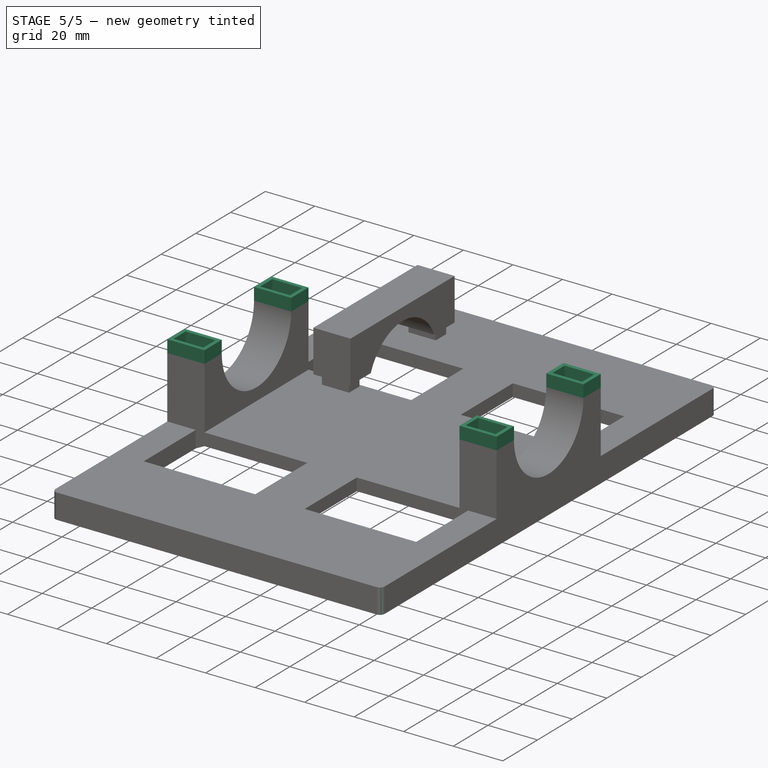
[diagram: stage 5 of 5 — iso view after this stage's code; geometry added in this stage tinted green]
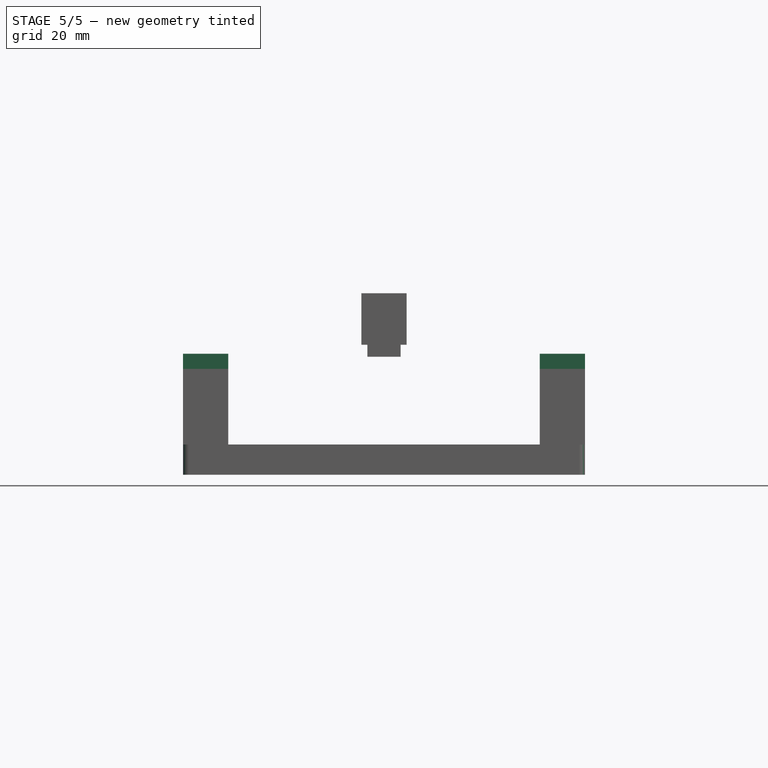
[diagram: stage 5 of 5 — front view after this stage's code; geometry added in this stage tinted green]
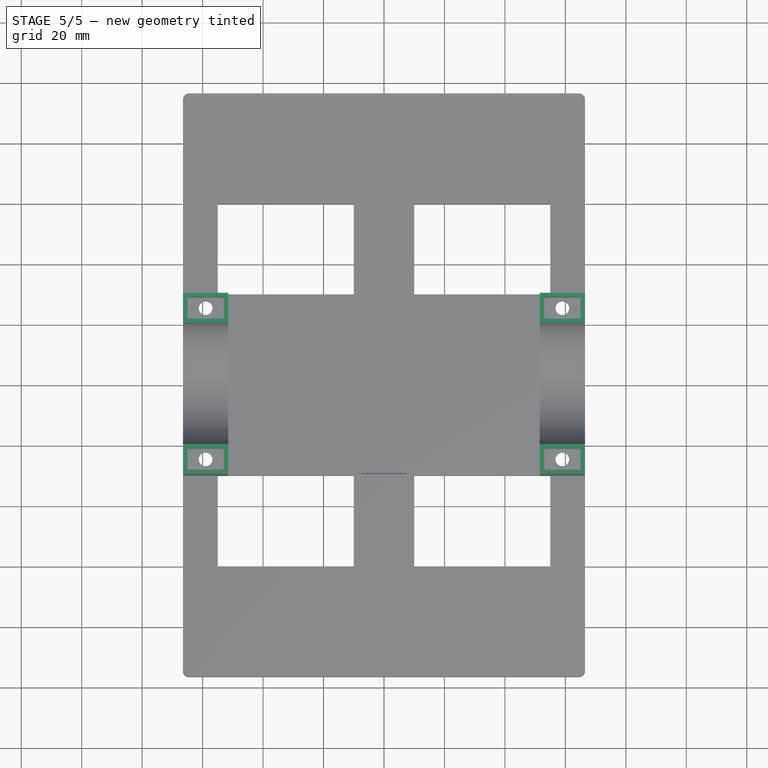
[diagram: stage 5 of 5 — top view after this stage's code; geometry added in this stage tinted green]
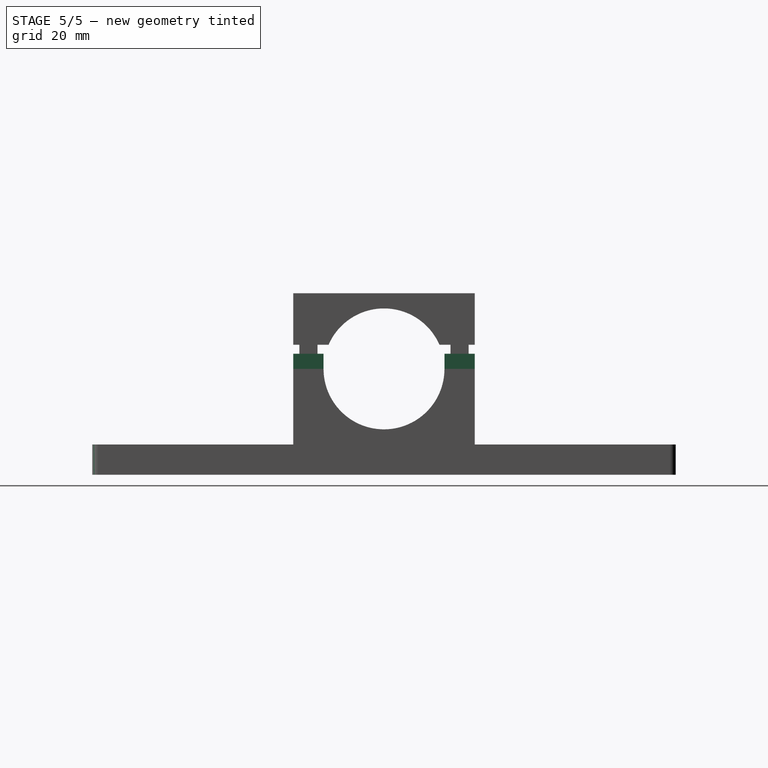
[diagram: stage 5 of 5 — right view after this stage's code; geometry added in this stage tinted green]
FEATURE [Sketcher::SketchObject] Sketch007
  ExternalGeometry = -> [Pocket004]
  FullyConstrained = true
  MapMode = 5
  Support = -> [XY_Plane001]
  expr: Constraints[0] = Spreadsheet.boxe_screw
  sketch-geometry (4):
    g0: Circle CenterX=-59 CenterY=25 CenterZ=0 NormalX=0 NormalY=0 NormalZ=1 AngleXU=0 Radius=4
    g1: Circle CenterX=59 CenterY=25 CenterZ=0 NormalX=0 NormalY=0 NormalZ=1 AngleXU=0 Radius=4
    g2: Circle CenterX=59 CenterY=-25 CenterZ=0 NormalX=0 NormalY=0 NormalZ=1 AngleXU=0 Radius=4
    g3: Circle CenterX=-59 CenterY=-25 CenterZ=0 NormalX=0 NormalY=0 NormalZ=1 AngleXU=0 Radius=4
  constraints (8):
    c: Diameter(g0) = 8
    c: Equal(g0,g1)
    c: Equal(g0,g3)
    c: Equal(g0,g2)
    c: Coincident(g0,g-3)
    c: Coincident(g-6,g3)
    c: Coincident(g1,g-4)
    c: Coincident(g2,g-5)
FEATURE [PartDesign::Pocket] Pocket005  label="pox_hole"
  BaseFeature = -> Pocket004
  Direction = (0,0,-1)
  Length = 32
  Length2 = 5
  Profile = -> Sketch007
  ReferenceAxis = -> Sketch007 [N_Axis]
  Reversed = true
  Type = 0
FEATURE [Sketcher::SketchObject] Sketch008  label="recessed_a"
  ExternalGeometry = -> [Pocket005]
  FullyConstrained = true
  MapMode = 5
  Placement = pos=(-9.7e-15,7.8e-15,35) rot=(0,0,1;0rad)
  Support = -> [Pocket005]
  sketch-geometry (32):
    g0: LineSegment StartX=-66.5 StartY=30 StartZ=0 EndX=-51.5 EndY=30 EndZ=0
    g1: LineSegment StartX=-51.5 StartY=30 StartZ=0 EndX=-51.5 EndY=20 EndZ=0
    g2: LineSegment StartX=-51.5 StartY=20 StartZ=0 EndX=-66.5 EndY=20 EndZ=0
    g3: LineSegment StartX=-66.5 StartY=20 StartZ=0 EndX=-66.5 EndY=30 EndZ=0
    g4: LineSegment StartX=-65 StartY=28.5 StartZ=0 EndX=-53 EndY=28.5 EndZ=0
    g5: LineSegment StartX=-53 StartY=28.5 StartZ=0 EndX=-53 EndY=21.5 EndZ=0
    g6: LineSegment StartX=-53 StartY=21.5 StartZ=0 EndX=-65 EndY=21.5 EndZ=0
    g7: LineSegment StartX=-65 StartY=21.5 StartZ=0 EndX=-65 EndY=28.5 EndZ=0
    g8: LineSegment StartX=-51.5 StartY=-20 StartZ=0 EndX=-66.5 EndY=-20 EndZ=0
    g9: LineSegment StartX=-66.5 StartY=-20 StartZ=0 EndX=-66.5 EndY=-30 EndZ=0
    g10: LineSegment StartX=-66.5 StartY=-30 StartZ=0 EndX=-51.5 EndY=-30 EndZ=0
    g11: LineSegment StartX=-51.5 StartY=-30 StartZ=0 EndX=-51.5 EndY=-20 EndZ=0
    g12: LineSegment StartX=-65 StartY=-21.5 StartZ=0 EndX=-53 EndY=-21.5 EndZ=0
    g13: LineSegment StartX=-53 StartY=-21.5 StartZ=0 EndX=-53 EndY=-28.5 EndZ=0
    g14: LineSegment StartX=-53 StartY=-28.5 StartZ=0 EndX=-65 EndY=-28.5 EndZ=0
    g15: LineSegment StartX=-65 StartY=-28.5 StartZ=0 EndX=-65 EndY=-21.5 EndZ=0
    g16: LineSegment StartX=51.5 StartY=-20 StartZ=0 EndX=66.5 EndY=-20 EndZ=0
    g17: LineSegment StartX=66.5 StartY=-20 StartZ=0 EndX=66.5 EndY=-30 EndZ=0
    g18: LineSegment StartX=66.5 StartY=-30 StartZ=0 EndX=51.5 EndY=-30 EndZ=0
    g19: LineSegment StartX=51.5 StartY=-30 StartZ=0 EndX=51.5 EndY=-20 EndZ=0
    g20: LineSegment StartX=53 StartY=-21.5 StartZ=0 EndX=65 EndY=-21.5 EndZ=0
    g21: LineSegment StartX=65 StartY=-21.5 StartZ=0 EndX=65 EndY=-28.5 EndZ=0
    g22: LineSegment StartX=65 StartY=-28.5 StartZ=0 EndX=53 EndY=-28.5 EndZ=0
    g23: LineSegment StartX=53 StartY=-28.5 StartZ=0 EndX=53 EndY=-21.5 EndZ=0
    g24: LineSegment StartX=51.5 StartY=20 StartZ=0 EndX=66.5 EndY=20 EndZ=0
    g25: LineSegment StartX=66.5 StartY=20 StartZ=0 EndX=66.5 EndY=30 EndZ=0
    g26: LineSegment StartX=66.5 StartY=30 StartZ=0 EndX=51.5 EndY=30 EndZ=0
    g27: LineSegment StartX=51.5 StartY=30 StartZ=0 EndX=51.5 EndY=20 EndZ=0
    g28: LineSegment StartX=53 StartY=28.5 StartZ=0 EndX=65 EndY=28.5 EndZ=0
    g29: LineSegment StartX=65 StartY=28.5 StartZ=0 EndX=65 EndY=21.5 EndZ=0
    g30: LineSegment StartX=65 StartY=21.5 StartZ=0 EndX=53 EndY=21.5 EndZ=0
    g31: LineSegment StartX=53 StartY=21.5 StartZ=0 EndX=53 EndY=28.5 EndZ=0
  constraints (88):
    c: Coincident(g0,g1)
    c: Coincident(g1,g2)
    c: Coincident(g2,g3)
    c: Coincident(g3,g0)
    c: Horizontal(g0)
    c: Horizontal(g2)
    c: Vertical(g1)
    c: Vertical(g3)
    c: Coincident(g1,g-4)
    c: Coincident(g0,g-3)
    c: Coincident(g4,g5)
    c: Coincident(g5,g6)
    c: Coincident(g6,g7)
    c: Coincident(g7,g4)
    c: Horizontal(g4)
    c: Horizontal(g6)
    c: Vertical(g5)
    c: Vertical(g7)
    c: DistanceY(g2,g6) = 1.5
    c: DistanceY(g4,g0) = 1.5
    c: DistanceX(g4,g0) = 1.5
    c: DistanceX(g0,g4) = 1.5
    c: Coincident(g8,g9)
    c: Coincident(g9,g10)
    c: Coincident(g10,g11)
    c: Coincident(g11,g8)
    c: Horizontal(g8)
    c: Horizontal(g10)
    c: Vertical(g9)
    c: Vertical(g11)
    c: Coincident(g8,g-6)
    c: Coincident(g9,g-5)
    c: Coincident(g12,g13)
    c: Coincident(g13,g14)
    c: Coincident(g14,g15)
    c: Coincident(g15,g12)
    c: Horizontal(g12)
    c: Horizontal(g14)
    c: Vertical(g13)
    c: Vertical(g15)
    c: DistanceX(g8,g12) = 1.5
    c: DistanceX(g12,g8) = 1.5
    c: DistanceY(g9,g14) = 1.5
    c: DistanceY(g12,g8) = 1.5
    c: Coincident(g16,g17)
    c: Coincident(g17,g18)
    c: Coincident(g18,g19)
    c: Coincident(g19,g16)
    c: Horizontal(g16)
    c: Horizontal(g18)
    c: Vertical(g17)
    c: Vertical(g19)
    c: Coincident(g16,g-7)
    c: Coincident(g17,g-8)
    c: Coincident(g20,g21)
    c: Coincident(g21,g22)
    c: Coincident(g22,g23)
    c: Coincident(g23,g20)
    c: Horizontal(g20)
    c: Horizontal(g22)
    c: Vertical(g21)
    c: Vertical(g23)
    c: DistanceX(g16,g20) = 1.5
    c: DistanceX(g20,g16) = 1.5
    c: DistanceY(g18,g22) = 1.5
    c: DistanceY(g20,g16) = 1.5
    c: Coincident(g24,g25)
    c: Coincident(g25,g26)
    c: Coincident(g26,g27)
    c: Coincident(g27,g24)
    c: Horizontal(g24)
    c: Horizontal(g26)
    c: Vertical(g25)
    c: Vertical(g27)
    c: Coincident(g24,g-9)
    c: Coincident(g25,g-10)
    c: Coincident(g28,g29)
    c: Coincident(g29,g30)
    c: Coincident(g30,g31)
    c: Coincident(g31,g28)
    c: Horizontal(g28)
    c: Horizontal(g30)
    c: Vertical(g29)
    c: Vertical(g31)
    c: DistanceX(g26,g28) = 1.5
    c: DistanceX(g28,g25) = 1.5
    c: DistanceY(g24,g30) = 1.5
    c: DistanceY(g28,g26) = 1.5
FEATURE [PartDesign::Pad] Pad002
  BaseFeature = -> Pocket005
  Direction = (-3e-16,2e-16,1)
  Length = 5
  Length2 = 10
  Profile = -> Sketch008
  ReferenceAxis = -> Sketch008 [N_Axis]
  Type = 0
FEATURE [PartDesign::Fillet] Fillet
  Base = -> Pad002 [Edge1,Edge2,Edge122,Edge121]
  BaseFeature = -> Pad002
  Radius = 2
  SupportTransform = false
  UseAllEdges = false
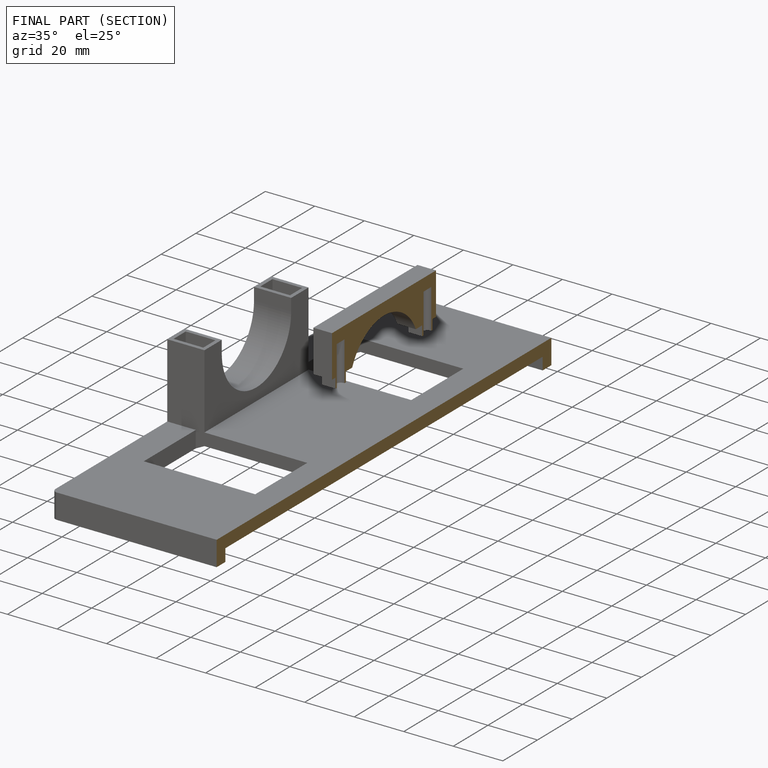
[diagram: finished part — half-section view (interior)]
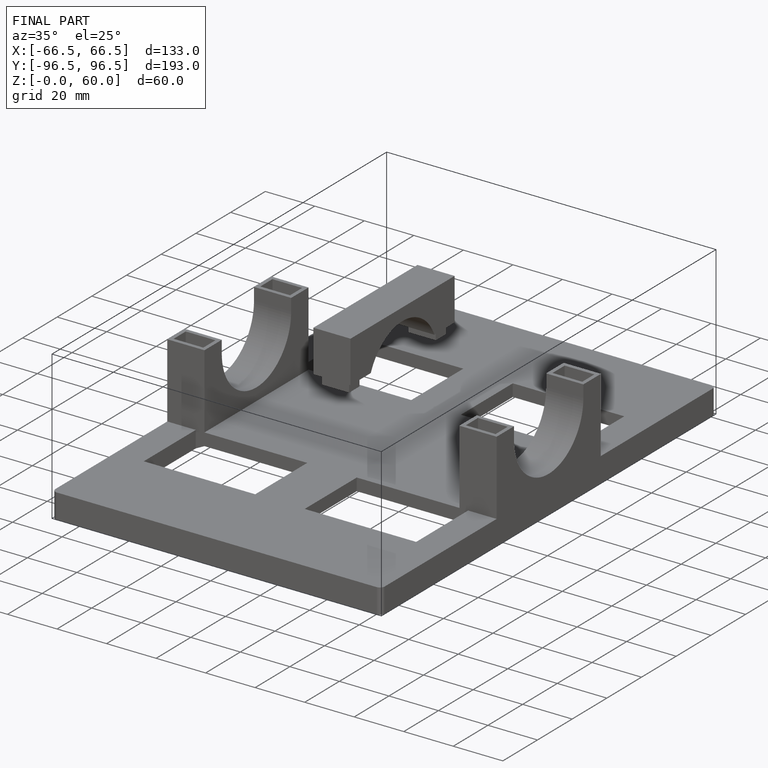
[diagram: finished part — iso view with bounding-box wireframe]
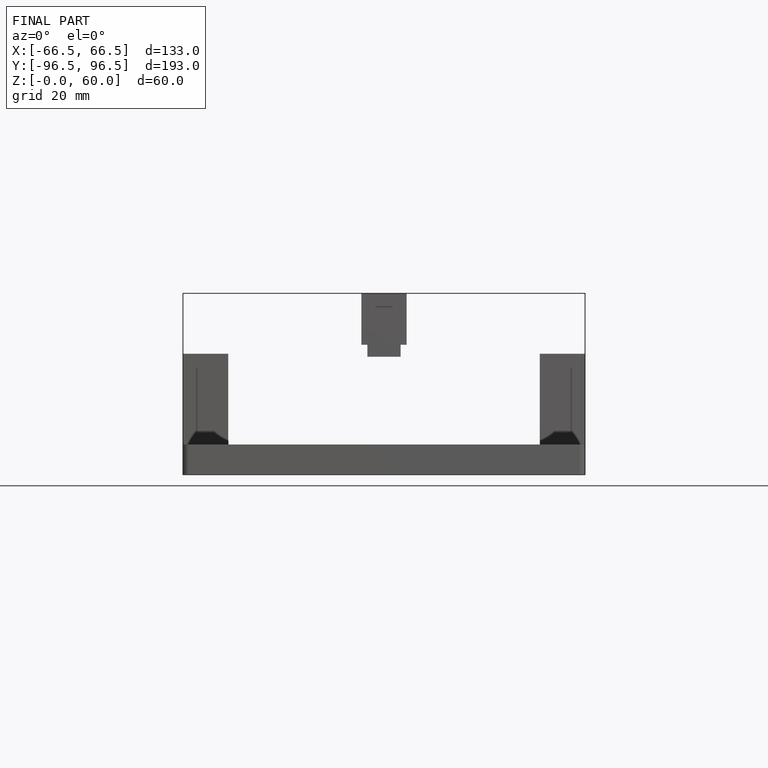
[diagram: finished part — front view with bounding-box wireframe]
